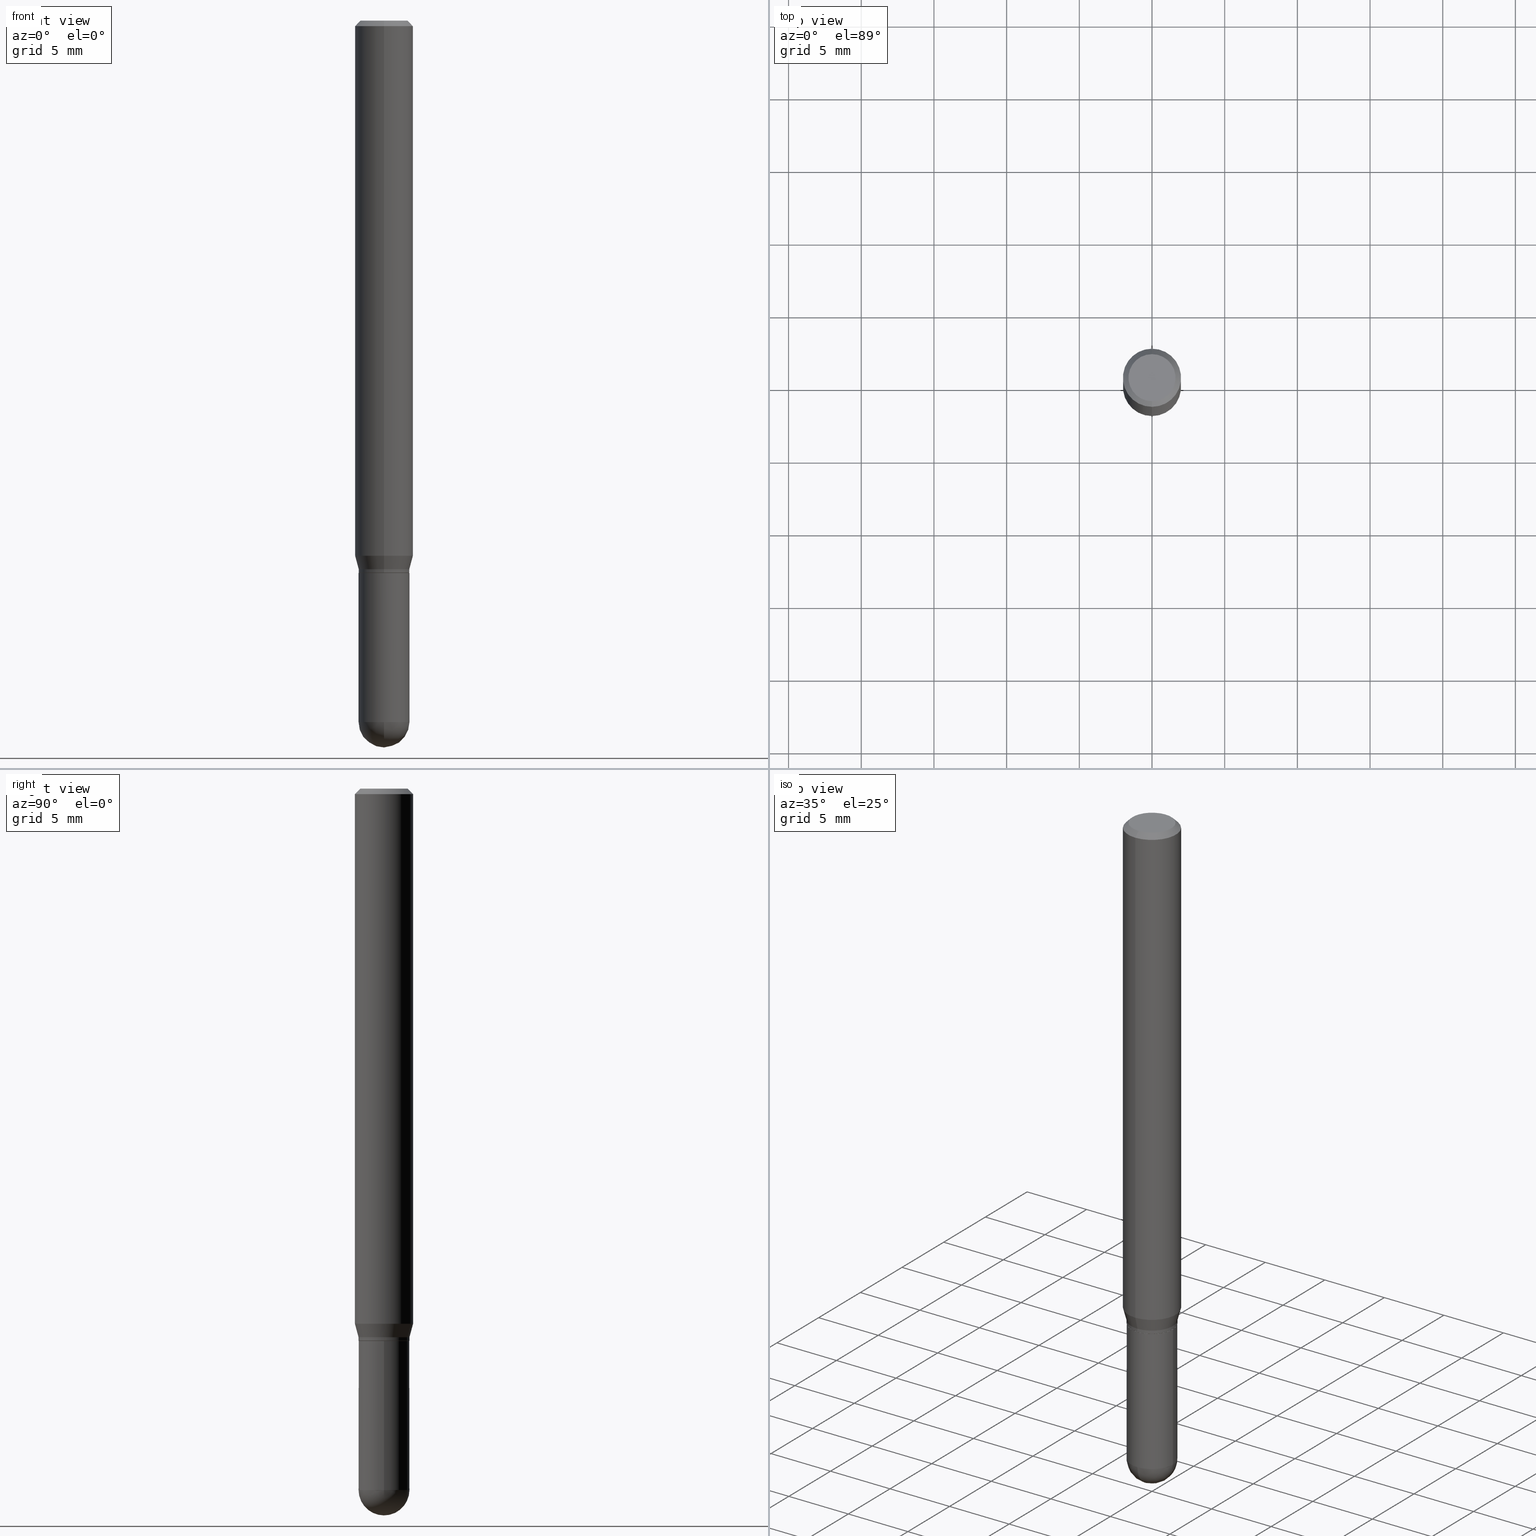
[diagram: canonical four-view strip — front | top / right | iso, engineering-drawing reading convention]
A machine part, canonical four-view strip (front | top / right | iso — engineering-drawing reading convention). The complete STEP part file that produces these views, byte-faithful:
ISO-10303-21;
HEADER;
FILE_DESCRIPTION (( 'STEP AP203' ),
    '1' );
FILE_NAME ('48697.STEP',
    '2024-03-08T13:13:53',
    ( '' ),
    ( '' ),
    'SwSTEP 2.0',
    'SolidWorks 2023',
    '' );
FILE_SCHEMA (( 'CONFIG_CONTROL_DESIGN' ));
ENDSEC;

DATA;
#1 = ORIENTED_EDGE ( 'NONE', *, *, #231, .F. ) ;
#2 = ORIENTED_EDGE ( 'NONE', *, *, #409, .F. ) ;
#3 = ORIENTED_EDGE ( 'NONE', *, *, #128, .F. ) ;
#4 = DIRECTION ( 'NONE',  ( 5.024295867788190974E-15, 0.7071067811865681119, 0.7071067811865270336 ) ) ;
#5 = EDGE_CURVE ( 'NONE', #339, #266, #205, .T. ) ;
#6 = ORIENTED_EDGE ( 'NONE', *, *, #172, .T. ) ;
#7 = AXIS2_PLACEMENT_3D ( 'NONE', #75, #180, #108 ) ;
#8 = APPLICATION_CONTEXT ( 'configuration controlled 3d designs of mechanical parts and assemblies' ) ;
#9 = ORIENTED_EDGE ( 'NONE', *, *, #433, .F. ) ;
#10 = LINE ( 'NONE', #372, #207 ) ;
#11 = DIRECTION ( 'NONE',  ( -6.982962677686265922E-15, -1.000000000000000000, 3.491123500755268426E-15 ) ) ;
#12 = ADVANCED_FACE ( 'NONE', ( #326 ), #441, .T. ) ;
#13 = CARTESIAN_POINT ( 'NONE',  ( 4.860112312599455225E-16, 0.06839999999999483993, -1.496100000000000207 ) ) ;
#14 = VECTOR ( 'NONE', #312, 39.37007874015748143 ) ;
#15 = AXIS2_PLACEMENT_3D ( 'NONE', #104, #501, #149 ) ;
#16 = DATE_AND_TIME ( #97, #321 ) ;
#17 = DIRECTION ( 'NONE',  ( 1.000000000000000000, -6.982962677686273021E-15, 0.000000000000000000 ) ) ;
#18 = DIRECTION ( 'NONE',  ( 2.445718683186366455E-29, -3.491123500755268426E-15, -1.000000000000000000 ) ) ;
#19 = FACE_OUTER_BOUND ( 'NONE', #469, .T. ) ;
#20 = VECTOR ( 'NONE', #486, 39.37007874015748143 ) ;
#21 = AXIS2_PLACEMENT_3D ( 'NONE', #254, #387, #103 ) ;
#22 = PERSON_AND_ORGANIZATION_ROLE ( 'design_supplier' ) ;
#23 = CARTESIAN_POINT ( 'NONE',  ( -4.776346471537044438E-16, -0.06840000000000528990, -1.496099999999999541 ) ) ;
#24 = PERSON_AND_ORGANIZATION_ROLE ( 'creator' ) ;
#25 = CARTESIAN_POINT ( 'NONE',  ( 3.668578024779561944E-31, -5.236685251132917725E-17, -0.01500000000000004628 ) ) ;
#26 = ADVANCED_FACE ( 'NONE', ( #107 ), #305, .T. ) ;
#27 = CIRCLE ( 'NONE', #269, 0.06889999999999972535 ) ;
#28 = CARTESIAN_POINT ( 'NONE',  ( 4.645412544229285965E-29, -6.632417951266439838E-15, -1.899600000000000177 ) ) ;
#29 = DIRECTION ( 'NONE',  ( -1.000000000000000000, 6.982962677686265922E-15, -4.883557194083112901E-29 ) ) ;
#30 = VERTEX_POINT ( 'NONE', #32 ) ;
#31 = EDGE_CURVE ( 'NONE', #379, #365, #193, .T. ) ;
#32 = CARTESIAN_POINT ( 'NONE',  ( 0.06890000000000008618, -6.409137719647418882E-15, -1.899600000000000177 ) ) ;
#33 = LINE ( 'NONE', #502, #459 ) ;
#34 = DIRECTION ( 'NONE',  ( -2.445718683186366736E-29, 3.491123500755268031E-15, 1.000000000000000000 ) ) ;
#35 = ORIENTED_EDGE ( 'NONE', *, *, #189, .F. ) ;
#36 = CARTESIAN_POINT ( 'NONE',  ( 3.659039721915122742E-29, -5.223069869479955983E-15, -1.496099999999999985 ) ) ;
#37 = VERTEX_POINT ( 'NONE', #353 ) ;
#38 = ADVANCED_FACE ( 'NONE', ( #468 ), #93, .T. ) ;
#39 = DIRECTION ( 'NONE',  ( -2.445718683186366736E-29, 3.491123500755268031E-15, 1.000000000000000000 ) ) ;
#40 = VECTOR ( 'NONE', #4, 39.37007874015748143 ) ;
#41 = ORIENTED_EDGE ( 'NONE', *, *, #445, .T. ) ;
#42 = ORIENTED_EDGE ( 'NONE', *, *, #322, .F. ) ;
#43 = DIRECTION ( 'NONE',  ( -2.445468806185136597E-29, 3.491481338843145583E-15, 1.000000000000000000 ) ) ;
#44 = ORIENTED_EDGE ( 'NONE', *, *, #173, .T. ) ;
#45 = CIRCLE ( 'NONE', #257, 0.06889999999999996128 ) ;
#46 = AXIS2_PLACEMENT_3D ( 'NONE', #444, #43, #196 ) ;
#47 = DIRECTION ( 'NONE',  ( -1.000000000000000000, 7.105427357601001070E-15, -4.926315508542082329E-29 ) ) ;
#48 = CC_DESIGN_DATE_AND_TIME_ASSIGNMENT ( #208, #143, ( #371 ) ) ;
#49 = FACE_OUTER_BOUND ( 'NONE', #51, .T. ) ;
#50 = EDGE_CURVE ( 'NONE', #365, #66, #235, .T. ) ;
#51 = EDGE_LOOP ( 'NONE', ( #115, #368, #2, #1 ) ) ;
#52 = PRODUCT_DEFINITION ( 'UNKNOWN', '', #82, #95 ) ;
#53 = AXIS2_PLACEMENT_3D ( 'NONE', #272, #310, #276 ) ;
#54 = CALENDAR_DATE ( 2024, 8, 3 ) ;
#55 = LINE ( 'NONE', #148, #14 ) ;
#56 = PERSON_AND_ORGANIZATION ( #342, #336 ) ;
#57 = DIRECTION ( 'NONE',  ( -6.982962677686266711E-15, -1.000000000000000000, 3.993929815298627073E-15 ) ) ;
#58 = DIRECTION ( 'NONE',  ( -2.445718683186366736E-29, 3.491123500755268031E-15, 1.000000000000000000 ) ) ;
#59 = AXIS2_PLACEMENT_3D ( 'NONE', #28, #354, #114 ) ;
#60 = AXIS2_PLACEMENT_3D ( 'NONE', #182, #18, #340 ) ;
#61 = ADVANCED_FACE ( 'NONE', ( #190 ), #134, .T. ) ;
#62 = CARTESIAN_POINT ( 'NONE',  ( 3.657816862573530119E-29, -5.221324307729578859E-15, -1.495600000000000041 ) ) ;
#63 = CARTESIAN_POINT ( 'NONE',  ( -4.811261284925827524E-16, -0.06889999999999986413, 2.405384092020375136E-16 ) ) ;
#64 = CARTESIAN_POINT ( 'NONE',  ( -4.811261284925454787E-16, -0.06890000000000491565, -1.486099999999999755 ) ) ;
#65 = DIRECTION ( 'NONE',  ( -2.445718683186366736E-29, 3.491123500755268031E-15, 1.000000000000000000 ) ) ;
#66 = VERTEX_POINT ( 'NONE', #77 ) ;
#67 = CLOSED_SHELL ( 'NONE', ( #421, #61, #38, #370, #192, #163, #309, #26, #488, #349, #411, #12 ) ) ;
#68 = AXIS2_PLACEMENT_3D ( 'NONE', #474, #284, #74 ) ;
#69 = AXIS2_PLACEMENT_3D ( 'NONE', #410, #70, #150 ) ;
#70 = DIRECTION ( 'NONE',  ( 2.445718683186366736E-29, -3.491123500755268031E-15, -1.000000000000000000 ) ) ;
#71 = LOCAL_TIME ( 8, 13, 53.00000000000000000, #291 ) ;
#72 = VERTEX_POINT ( 'NONE', #383 ) ;
#73 = DIRECTION ( 'NONE',  ( -7.105427357601001859E-15, -1.000000000000000000, 0.000000000000000000 ) ) ;
#74 = DIRECTION ( 'NONE',  ( 6.982962677686264344E-15, 1.000000000000000000, -3.496114991891765576E-15 ) ) ;
#75 = CARTESIAN_POINT ( 'NONE',  ( 3.659039721915122742E-29, -5.223069869479955983E-15, -1.496099999999999985 ) ) ;
#76 = ORIENTED_EDGE ( 'NONE', *, *, #299, .F. ) ;
#77 = CARTESIAN_POINT ( 'NONE',  ( 5.245581746749287830E-16, 0.06889999999999453506, -1.486100000000000199 ) ) ;
#78 = ORIENTED_EDGE ( 'NONE', *, *, #86, .T. ) ;
#79 = DIRECTION ( 'NONE',  ( -6.982962677686265922E-15, -1.000000000000000000, 3.491123500755268426E-15 ) ) ;
#80 = AXIS2_PLACEMENT_3D ( 'NONE', #381, #470, #281 ) ;
#81 = EDGE_CURVE ( 'NONE', #439, #126, #301, .T. ) ;
#82 = PRODUCT_DEFINITION_FORMATION_WITH_SPECIFIED_SOURCE ( 'ANY', '', #374, .NOT_KNOWN. ) ;
#83 = EDGE_CURVE ( 'NONE', #379, #283, #338, .T. ) ;
#84 = ORIENTED_EDGE ( 'NONE', *, *, #31, .F. ) ;
#85 = CARTESIAN_POINT ( 'NONE',  ( -5.499083108677932471E-16, -0.07874999999999997280, 2.749259756844772993E-16 ) ) ;
#86 = EDGE_CURVE ( 'NONE', #229, #327, #317, .T. ) ;
#87 = VECTOR ( 'NONE', #377, 39.37007874015748143 ) ;
#88 = ORIENTED_EDGE ( 'NONE', *, *, #204, .T. ) ;
#89 = CARTESIAN_POINT ( 'NONE',  ( 4.895639449387433642E-16, 0.06889999999999453506, -1.486100000000000199 ) ) ;
#90 = ORIENTED_EDGE ( 'NONE', *, *, #86, .F. ) ;
#91 = DIRECTION ( 'NONE',  ( 1.839019923739594004E-15, 0.2588190451025240701, 0.9659258262890673130 ) ) ;
#92 = CARTESIAN_POINT ( 'NONE',  ( -0.06890000000000008618, -5.438447646216124813E-15, -1.899600000000000177 ) ) ;
#93 = CONICAL_SURFACE ( 'NONE', #68, 0.07875000000000000056, 0.7853981633974483900 ) ;
#94 = CC_DESIGN_APPROVAL ( #415, ( #82 ) ) ;
#95 = DESIGN_CONTEXT ( 'detailed design', #8, 'design' ) ;
#96 = CARTESIAN_POINT ( 'NONE',  ( 4.645412544229285965E-29, -6.632417951266439838E-15, -1.899600000000000177 ) ) ;
#97 = CALENDAR_DATE ( 2024, 8, 3 ) ;
#98 = CARTESIAN_POINT ( 'NONE',  ( 3.634582535083260198E-29, -5.188158634472404036E-15, -1.486099999999999977 ) ) ;
#99 = CARTESIAN_POINT ( 'NONE',  ( 4.811261284926208150E-16, 0.06889999999999484037, -1.496100000000000207 ) ) ;
#100 = DIRECTION ( 'NONE',  ( -6.982962677686266711E-15, -1.000000000000000000, 3.993929815298627073E-15 ) ) ;
#101 = PERSON_AND_ORGANIZATION ( #342, #336 ) ;
#102 = CARTESIAN_POINT ( 'NONE',  ( 3.657816862573530119E-29, -5.221324307729578859E-15, -1.495600000000000041 ) ) ;
#103 = DIRECTION ( 'NONE',  ( 1.000000000000000000, -6.982962677686273021E-15, 0.000000000000000000 ) ) ;
#104 = CARTESIAN_POINT ( 'NONE',  ( 4.679918503997674770E-29, -6.583003452920844326E-15, -1.899600000000000177 ) ) ;
#105 = LOCAL_TIME ( 8, 13, 53.00000000000000000, #213 ) ;
#106 =( LENGTH_UNIT ( ) NAMED_UNIT ( * ) SI_UNIT ( $, .METRE. ) );
#107 = FACE_OUTER_BOUND ( 'NONE', #247, .T. ) ;
#108 = DIRECTION ( 'NONE',  ( -6.982962677686266711E-15, -1.000000000000000000, 3.993929815298627073E-15 ) ) ;
#109 = EDGE_LOOP ( 'NONE', ( #195, #78, #188, #35, #331 ) ) ;
#110 = AXIS2_PLACEMENT_3D ( 'NONE', #62, #316, #274 ) ;
#111 = DIRECTION ( 'NONE',  ( -2.445718683186366736E-29, 3.491123500755268031E-15, 1.000000000000000000 ) ) ;
#112 = ORIENTED_EDGE ( 'NONE', *, *, #189, .T. ) ;
#113 = DIRECTION ( 'NONE',  ( -6.982962677686266711E-15, -1.000000000000000000, 3.993929815298627073E-15 ) ) ;
#114 = DIRECTION ( 'NONE',  ( 1.000000000000000000, -6.982962677686273021E-15, 0.000000000000000000 ) ) ;
#115 = ORIENTED_EDGE ( 'NONE', *, *, #173, .F. ) ;
#116 = CARTESIAN_POINT ( 'NONE',  ( 4.975360907851465623E-16, 0.06375000000000000111, -2.694146663143613090E-16 ) ) ;
#117 = EDGE_LOOP ( 'NONE', ( #476, #41, #162, #167 ) ) ;
#118 = CIRCLE ( 'NONE', #319, 0.07875000000000000056 ) ;
#119 = DIRECTION ( 'NONE',  ( -6.982962677686265922E-15, -1.000000000000000000, 3.469013325287954477E-15 ) ) ;
#120 = EDGE_CURVE ( 'NONE', #266, #72, #33, .T. ) ;
#121 = DATE_AND_TIME ( #124, #71 ) ;
#122 = VERTEX_POINT ( 'NONE', #395 ) ;
#123 = FACE_OUTER_BOUND ( 'NONE', #440, .T. ) ;
#124 = CALENDAR_DATE ( 2024, 8, 3 ) ;
#125 = ADVANCED_BREP_SHAPE_REPRESENTATION ( '48697', ( #402, #217, #362 ), #184 ) ;
#126 = VERTEX_POINT ( 'NONE', #23 ) ;
#127 = ORIENTED_EDGE ( 'NONE', *, *, #222, .F. ) ;
#128 = EDGE_CURVE ( 'NONE', #72, #328, #361, .T. ) ;
#129 = AXIS2_PLACEMENT_3D ( 'NONE', #335, #47, #73 ) ;
#130 = CARTESIAN_POINT ( 'NONE',  ( -4.811261284925468592E-16, -0.06890000000000517932, -1.495599999999999818 ) ) ;
#131 = APPROVAL_PERSON_ORGANIZATION ( #56, #416, #384 ) ;
#132 = CARTESIAN_POINT ( 'NONE',  ( 3.634582535083260198E-29, -5.188158634472404036E-15, -1.486099999999999977 ) ) ;
#133 = PERSON_AND_ORGANIZATION ( #342, #336 ) ;
#134 = CONICAL_SURFACE ( 'NONE', #398, 0.06840000000000005798, 0.7853981633974739252 ) ;
#135 = AXIS2_PLACEMENT_3D ( 'NONE', #241, #329, #119 ) ;
#136 = CALENDAR_DATE ( 2024, 8, 3 ) ;
#137 = LOCAL_TIME ( 8, 13, 53.00000000000000000, #491 ) ;
#138 = PLANE ( 'NONE',  #289 ) ;
#139 = DIRECTION ( 'NONE',  ( -2.445468806185136597E-29, 3.491481338843145583E-15, 1.000000000000000000 ) ) ;
#140 = PERSON_AND_ORGANIZATION ( #342, #336 ) ;
#141 =( NAMED_UNIT ( * ) SI_UNIT ( $, .STERADIAN. ) SOLID_ANGLE_UNIT ( ) );
#142 = DIRECTION ( 'NONE',  ( 1.000000000000000000, -6.982962677686265922E-15, 4.876176775795935232E-29 ) ) ;
#143 = DATE_TIME_ROLE ( 'classification_date' ) ;
#144 = DIRECTION ( 'NONE',  ( 6.982962677686265922E-15, 1.000000000000000000, 0.000000000000000000 ) ) ;
#145 = AXIS2_PLACEMENT_3D ( 'NONE', #25, #356, #437 ) ;
#146 = CIRCLE ( 'NONE', #344, 0.06889999999999998903 ) ;
#147 = ORIENTED_EDGE ( 'NONE', *, *, #222, .T. ) ;
#148 = CARTESIAN_POINT ( 'NONE',  ( 0.06890000000000007230, -4.811261284925842315E-16, 3.359685798523402771E-30 ) ) ;
#149 = DIRECTION ( 'NONE',  ( 6.982962677686265922E-15, 1.000000000000000000, -3.964946289788482474E-15 ) ) ;
#150 = DIRECTION ( 'NONE',  ( 6.982962677686264344E-15, 1.000000000000000000, -3.496114991891765576E-15 ) ) ;
#151 = CARTESIAN_POINT ( 'NONE',  ( 4.679918503997674770E-29, -6.583003452920844326E-15, -1.899600000000000177 ) ) ;
#152 = LINE ( 'NONE', #64, #422 ) ;
#153 = ORIENTED_EDGE ( 'NONE', *, *, #324, .F. ) ;
#154 = ORIENTED_EDGE ( 'NONE', *, *, #120, .F. ) ;
#155 = DIRECTION ( 'NONE',  ( -2.445718683186367016E-29, 3.491123500755268426E-15, 1.000000000000000000 ) ) ;
#156 = ORIENTED_EDGE ( 'NONE', *, *, #265, .F. ) ;
#157 = CYLINDRICAL_SURFACE ( 'NONE', #183, 0.07874999999999997280 ) ;
#158 = AXIS2_PLACEMENT_3D ( 'NONE', #347, #454, #17 ) ;
#159 = DIRECTION ( 'NONE',  ( -2.445718683186366736E-29, 3.491123500755268031E-15, 1.000000000000000000 ) ) ;
#160 = DIRECTION ( 'NONE',  ( -6.982962677686264344E-15, -1.000000000000000000, 3.491123500755268031E-15 ) ) ;
#161 = EDGE_LOOP ( 'NONE', ( #320, #44, #186, #76 ) ) ;
#162 = ORIENTED_EDGE ( 'NONE', *, *, #250, .T. ) ;
#163 = ADVANCED_FACE ( 'NONE', ( #503 ), #435, .T. ) ;
#164 = ORIENTED_EDGE ( 'NONE', *, *, #128, .T. ) ;
#165 = DIRECTION ( 'NONE',  ( -6.982962677686265922E-15, -1.000000000000000000, 3.491123500755268426E-15 ) ) ;
#166 = VECTOR ( 'NONE', #248, 39.37007874015748143 ) ;
#167 = ORIENTED_EDGE ( 'NONE', *, *, #204, .F. ) ;
#168 = CLOSED_SHELL ( 'NONE', ( #275, #394, #494, #420, #296 ) ) ;
#169 = AXIS2_PLACEMENT_3D ( 'NONE', #396, #39, #160 ) ;
#170 = DIRECTION ( 'NONE',  ( -2.445718683186367016E-29, 3.491123500755268426E-15, 1.000000000000000000 ) ) ;
#171 = CIRCLE ( 'NONE', #21, 0.06890000000000007230 ) ;
#172 = EDGE_CURVE ( 'NONE', #252, #237, #200, .T. ) ;
#173 = EDGE_CURVE ( 'NONE', #438, #325, #45, .T. ) ;
#174 = DATE_TIME_ROLE ( 'creation_date' ) ;
#175 = CC_DESIGN_PERSON_AND_ORGANIZATION_ASSIGNMENT ( #389, #489, ( #371 ) ) ;
#176 = DIRECTION ( 'NONE',  ( -2.445718683186366736E-29, 3.491123500755268031E-15, 1.000000000000000000 ) ) ;
#177 = CONICAL_SURFACE ( 'NONE', #80, 0.06889999999999972535, 0.2617993877991494078 ) ;
#178 =( NAMED_UNIT ( * ) PLANE_ANGLE_UNIT ( ) SI_UNIT ( $, .RADIAN. ) );
#179 = COORDINATED_UNIVERSAL_TIME_OFFSET ( 5, 0, .BEHIND. ) ;
#180 = DIRECTION ( 'NONE',  ( -2.445718683186366736E-29, 3.491123500755268031E-15, 1.000000000000000000 ) ) ;
#181 = DIRECTION ( 'NONE',  ( -6.982962677686266711E-15, -1.000000000000000000, 3.964946289788496674E-15 ) ) ;
#182 = CARTESIAN_POINT ( 'NONE',  ( 4.451638707024993845E-16, 0.06375000000000000111, -2.459868947437548511E-16 ) ) ;
#183 = AXIS2_PLACEMENT_3D ( 'NONE', #450, #215, #351 ) ;
#184 =( GEOMETRIC_REPRESENTATION_CONTEXT ( 3 ) GLOBAL_UNCERTAINTY_ASSIGNED_CONTEXT ( ( #219 ) ) GLOBAL_UNIT_ASSIGNED_CONTEXT ( ( #388, #178, #141 ) ) REPRESENTATION_CONTEXT ( 'NONE', 'WORKASPACE' ) );
#185 = CARTESIAN_POINT ( 'NONE',  ( -4.888104823412213911E-16, -0.06375000000000000111, 1.757035800319353295E-16 ) ) ;
#186 = ORIENTED_EDGE ( 'NONE', *, *, #285, .F. ) ;
#187 = EDGE_LOOP ( 'NONE', ( #6, #227, #3, #224 ) ) ;
#188 = ORIENTED_EDGE ( 'NONE', *, *, #277, .F. ) ;
#189 = EDGE_CURVE ( 'NONE', #30, #122, #55, .T. ) ;
#190 = FACE_OUTER_BOUND ( 'NONE', #311, .T. ) ;
#191 = APPLICATION_CONTEXT ( 'configuration controlled 3d designs of mechanical parts and assemblies' ) ;
#192 = ADVANCED_FACE ( 'NONE', ( #230 ), #177, .T. ) ;
#193 = CIRCLE ( 'NONE', #110, 0.06889999999999998903 ) ;
#194 = CONICAL_SURFACE ( 'NONE', #280, 0.06840000000000005798, 0.7853981633974739252 ) ;
#195 = ORIENTED_EDGE ( 'NONE', *, *, #231, .T. ) ;
#196 = DIRECTION ( 'NONE',  ( 1.000000000000000000, -6.982962677686273021E-15, 0.000000000000000000 ) ) ;
#197 = EDGE_LOOP ( 'NONE', ( #404, #449 ) ) ;
#198 = EDGE_LOOP ( 'NONE', ( #232, #507 ) ) ;
#199 = ORIENTED_EDGE ( 'NONE', *, *, #50, .F. ) ;
#200 = CIRCLE ( 'NONE', #278, 0.07874999999999997280 ) ;
#201 = DIRECTION ( 'NONE',  ( 0.000000000000000000, 0.000000000000000000, 1.000000000000000000 ) ) ;
#202 = FACE_OUTER_BOUND ( 'NONE', #187, .T. ) ;
#203 = ORIENTED_EDGE ( 'NONE', *, *, #81, .F. ) ;
#204 = EDGE_CURVE ( 'NONE', #328, #72, #118, .T. ) ;
#205 = CIRCLE ( 'NONE', #499, 0.06375000000000000111 ) ;
#206 = AXIS2_PLACEMENT_3D ( 'NONE', #493, #139, #142 ) ;
#207 = VECTOR ( 'NONE', #170, 39.37007874015748143 ) ;
#208 = DATE_AND_TIME ( #256, #105 ) ;
#209 = DATE_AND_TIME ( #54, #418 ) ;
#210 = CARTESIAN_POINT ( 'NONE',  ( 3.668578024779561944E-31, -5.236685251132917725E-17, -0.01500000000000004628 ) ) ;
#211 = APPROVAL_STATUS ( 'not_yet_approved' ) ;
#212 = CC_DESIGN_PERSON_AND_ORGANIZATION_ASSIGNMENT ( #101, #24, ( #82 ) ) ;
#213 = COORDINATED_UNIVERSAL_TIME_OFFSET ( 5, 0, .BEHIND. ) ;
#214 = APPROVAL_ROLE ( '' ) ;
#215 = DIRECTION ( 'NONE',  ( -2.445718683186366736E-29, 3.491123500755268031E-15, 1.000000000000000000 ) ) ;
#216 = SPHERICAL_SURFACE ( 'NONE', #500, 0.06889999999999996128 ) ;
#217 = MANIFOLD_SOLID_BREP ( 'Body-Move/Copy2[2]', #67 ) ;
#218 = LENGTH_MEASURE_WITH_UNIT ( LENGTH_MEASURE( 0.02539999999999999897 ), #106 );
#219 = UNCERTAINTY_MEASURE_WITH_UNIT (LENGTH_MEASURE( 1.000000000000000082E-05 ), #388, 'distance_accuracy_value', 'NONE');
#220 = EDGE_LOOP ( 'NONE', ( #156, #337, #164, #406 ) ) ;
#221 = CIRCLE ( 'NONE', #508, 0.06840000000000005798 ) ;
#222 = EDGE_CURVE ( 'NONE', #283, #66, #27, .T. ) ;
#223 = PERSON_AND_ORGANIZATION_ROLE ( 'design_owner' ) ;
#224 = ORIENTED_EDGE ( 'NONE', *, *, #250, .F. ) ;
#225 = DIRECTION ( 'NONE',  ( 1.000000000000000000, -6.982962677686273021E-15, 0.000000000000000000 ) ) ;
#226 = CARTESIAN_POINT ( 'NONE',  ( -0.06890000000000007230, 4.895639449387095418E-16, -3.389146277185633520E-30 ) ) ;
#227 = ORIENTED_EDGE ( 'NONE', *, *, #375, .T. ) ;
#228 = LINE ( 'NONE', #13, #40 ) ;
#229 = VERTEX_POINT ( 'NONE', #92 ) ;
#230 = FACE_OUTER_BOUND ( 'NONE', #467, .T. ) ;
#231 = EDGE_CURVE ( 'NONE', #325, #229, #343, .T. ) ;
#232 = ORIENTED_EDGE ( 'NONE', *, *, #277, .T. ) ;
#233 = VECTOR ( 'NONE', #155, 39.37007874015748143 ) ;
#234 = CC_DESIGN_APPROVAL ( #505, ( #371 ) ) ;
#235 = LINE ( 'NONE', #399, #480 ) ;
#236 = DIRECTION ( 'NONE',  ( -2.445718683186366736E-29, 3.491123500755268031E-15, 1.000000000000000000 ) ) ;
#237 = VERTEX_POINT ( 'NONE', #367 ) ;
#238 = DIRECTION ( 'NONE',  ( -2.445718683186367016E-29, 3.491123500755268426E-15, 1.000000000000000000 ) ) ;
#239 = EDGE_CURVE ( 'NONE', #339, #328, #376, .T. ) ;
#240 = PLANE ( 'NONE',  #258 ) ;
#241 = CARTESIAN_POINT ( 'NONE',  ( 3.544676203174537983E-29, -5.059822489211284830E-15, -1.449339299545445714 ) ) ;
#242 = ORIENTED_EDGE ( 'NONE', *, *, #83, .T. ) ;
#243 = AXIS2_PLACEMENT_3D ( 'NONE', #132, #259, #181 ) ;
#244 = CC_DESIGN_APPROVAL ( #416, ( #52 ) ) ;
#245 = CARTESIAN_POINT ( 'NONE',  ( 4.851357352610053575E-29, -6.819347608944073688E-15, -1.968500000000000139 ) ) ;
#246 = EDGE_LOOP ( 'NONE', ( #314, #318, #127, #443 ) ) ;
#247 = EDGE_LOOP ( 'NONE', ( #154, #498, #307, #88 ) ) ;
#248 = DIRECTION ( 'NONE',  ( -2.445718683186367016E-29, 3.491123500755268426E-15, 1.000000000000000000 ) ) ;
#249 = CARTESIAN_POINT ( 'NONE',  ( 0.000000000000000000, 0.000000000000000000, 0.000000000000000000 ) ) ;
#250 = EDGE_CURVE ( 'NONE', #252, #72, #292, .T. ) ;
#251 = AXIS2_PLACEMENT_3D ( 'NONE', #426, #484, #11 ) ;
#252 = VERTEX_POINT ( 'NONE', #417 ) ;
#253 = EDGE_CURVE ( 'NONE', #438, #37, #473, .T. ) ;
#254 = CARTESIAN_POINT ( 'NONE',  ( 4.645412544229285965E-29, -6.632417951266439838E-15, -1.899600000000000177 ) ) ;
#255 = ORIENTED_EDGE ( 'NONE', *, *, #324, .T. ) ;
#256 = CALENDAR_DATE ( 2024, 8, 3 ) ;
#257 = AXIS2_PLACEMENT_3D ( 'NONE', #151, #431, #144 ) ;
#258 = AXIS2_PLACEMENT_3D ( 'NONE', #414, #369, #485 ) ;
#259 = DIRECTION ( 'NONE',  ( -2.445718683186366736E-29, 3.491123500755268031E-15, 1.000000000000000000 ) ) ;
#260 = EDGE_CURVE ( 'NONE', #439, #365, #228, .T. ) ;
#261 = APPLICATION_PROTOCOL_DEFINITION ( 'international standard', 'config_control_design', 1994, #8 ) ;
#262 = DIRECTION ( 'NONE',  ( -2.445468806185136597E-29, 3.491481338843145583E-15, 1.000000000000000000 ) ) ;
#263 = PERSON_AND_ORGANIZATION ( #342, #336 ) ;
#264 = FACE_OUTER_BOUND ( 'NONE', #161, .T. ) ;
#265 = EDGE_CURVE ( 'NONE', #266, #339, #407, .T. ) ;
#266 = VERTEX_POINT ( 'NONE', #185 ) ;
#267 = APPROVAL_ROLE ( '' ) ;
#268 = FACE_OUTER_BOUND ( 'NONE', #511, .T. ) ;
#269 = AXIS2_PLACEMENT_3D ( 'NONE', #308, #397, #451 ) ;
#270 = CARTESIAN_POINT ( 'NONE',  ( 3.659039721915122742E-29, -5.223069869479955983E-15, -1.496099999999999985 ) ) ;
#271 = COORDINATED_UNIVERSAL_TIME_OFFSET ( 5, 0, .BEHIND. ) ;
#272 = CARTESIAN_POINT ( 'NONE',  ( 4.645412544229285965E-29, -6.632417951266439838E-15, -1.899600000000000177 ) ) ;
#273 = FACE_OUTER_BOUND ( 'NONE', #109, .T. ) ;
#274 = DIRECTION ( 'NONE',  ( -6.982962677686265922E-15, -1.000000000000000000, 3.964946289788481685E-15 ) ) ;
#275 = ADVANCED_FACE ( 'NONE', ( #273 ), #341, .T. ) ;
#276 = DIRECTION ( 'NONE',  ( 1.000000000000000000, -6.982962677686273021E-15, 0.000000000000000000 ) ) ;
#277 = EDGE_CURVE ( 'NONE', #122, #327, #390, .T. ) ;
#278 = AXIS2_PLACEMENT_3D ( 'NONE', #424, #111, #496 ) ;
#279 = ORIENTED_EDGE ( 'NONE', *, *, #260, .T. ) ;
#280 = AXIS2_PLACEMENT_3D ( 'NONE', #401, #34, #100 ) ;
#281 = DIRECTION ( 'NONE',  ( -6.982962677686266711E-15, -1.000000000000000000, 3.964946289788496674E-15 ) ) ;
#282 = ORIENTED_EDGE ( 'NONE', *, *, #260, .F. ) ;
#283 = VERTEX_POINT ( 'NONE', #495 ) ;
#284 = DIRECTION ( 'NONE',  ( 2.445718683186366736E-29, -3.491123500755268031E-15, -1.000000000000000000 ) ) ;
#285 = EDGE_CURVE ( 'NONE', #30, #325, #448, .T. ) ;
#286 = CARTESIAN_POINT ( 'NONE',  ( 4.877875880993454787E-16, 0.06839999999999483993, -1.496100000000000207 ) ) ;
#287 = PLANE ( 'NONE',  #60 ) ;
#288 = CIRCLE ( 'NONE', #53, 0.06890000000000007230 ) ;
#289 = AXIS2_PLACEMENT_3D ( 'NONE', #99, #462, #490 ) ;
#290 = EDGE_CURVE ( 'NONE', #126, #439, #221, .T. ) ;
#291 = COORDINATED_UNIVERSAL_TIME_OFFSET ( 5, 0, .BEHIND. ) ;
#292 = LINE ( 'NONE', #85, #166 ) ;
#293 = PRODUCT_RELATED_PRODUCT_CATEGORY ( 'detail', '', ( #374 ) ) ;
#294 = VECTOR ( 'NONE', #91, 39.37007874015748854 ) ;
#295 = LINE ( 'NONE', #89, #294 ) ;
#296 = ADVANCED_FACE ( 'NONE', ( #19 ), #345, .T. ) ;
#297 = PRODUCT_DEFINITION_SHAPE ( 'NONE', 'NONE',  #52 ) ;
#298 = CARTESIAN_POINT ( 'NONE',  ( 0.000000000000000000, 0.000000000000000000, 0.000000000000000000 ) ) ;
#299 = EDGE_CURVE ( 'NONE', #37, #30, #288, .T. ) ;
#300 = DIRECTION ( 'NONE',  ( -4.851104656540964275E-15, -0.7071067811865500152, -0.7071067811865450192 ) ) ;
#301 = CIRCLE ( 'NONE', #7, 0.06840000000000005798 ) ;
#302 = AXIS2_PLACEMENT_3D ( 'NONE', #475, #359, #79 ) ;
#303 = AXIS2_PLACEMENT_3D ( 'NONE', #98, #58, #405 ) ;
#304 = CARTESIAN_POINT ( 'NONE',  ( 4.679918503997674770E-29, -6.583003452920844326E-15, -1.899600000000000177 ) ) ;
#305 = CONICAL_SURFACE ( 'NONE', #69, 0.07875000000000000056, 0.7853981633974483900 ) ;
#306 = CIRCLE ( 'NONE', #135, 0.07874999999999997280 ) ;
#307 = ORIENTED_EDGE ( 'NONE', *, *, #239, .T. ) ;
#308 = CARTESIAN_POINT ( 'NONE',  ( 3.634582535083260198E-29, -5.188158634472404036E-15, -1.486099999999999977 ) ) ;
#309 = ADVANCED_FACE ( 'NONE', ( #315 ), #157, .T. ) ;
#310 = DIRECTION ( 'NONE',  ( -2.445468806185136597E-29, 3.491481338843145583E-15, 1.000000000000000000 ) ) ;
#311 = EDGE_LOOP ( 'NONE', ( #478, #279, #84, #9 ) ) ;
#312 = DIRECTION ( 'NONE',  ( -2.445468806185136877E-29, 3.491481338843145188E-15, 1.000000000000000000 ) ) ;
#313 = CARTESIAN_POINT ( 'NONE',  ( 5.595524044111143991E-16, 0.07874999999999994504, -0.01500000000000032210 ) ) ;
#314 = ORIENTED_EDGE ( 'NONE', *, *, #31, .T. ) ;
#315 = FACE_OUTER_BOUND ( 'NONE', #117, .T. ) ;
#316 = DIRECTION ( 'NONE',  ( -2.445718683186366736E-29, 3.491123500755268031E-15, 1.000000000000000000 ) ) ;
#317 = LINE ( 'NONE', #226, #20 ) ;
#318 = ORIENTED_EDGE ( 'NONE', *, *, #50, .T. ) ;
#319 = AXIS2_PLACEMENT_3D ( 'NONE', #210, #236, #460 ) ;
#320 = ORIENTED_EDGE ( 'NONE', *, *, #253, .F. ) ;
#321 = LOCAL_TIME ( 8, 13, 53.00000000000000000, #179 ) ;
#322 = EDGE_CURVE ( 'NONE', #283, #252, #152, .T. ) ;
#323 = DIRECTION ( 'NONE',  ( -4.937700262164674260E-15, -0.7071067811865632269, 0.7071067811865319186 ) ) ;
#324 = EDGE_CURVE ( 'NONE', #365, #379, #146, .T. ) ;
#325 = VERTEX_POINT ( 'NONE', #455 ) ;
#326 = FACE_OUTER_BOUND ( 'NONE', #358, .T. ) ;
#327 = VERTEX_POINT ( 'NONE', #348 ) ;
#328 = VERTEX_POINT ( 'NONE', #313 ) ;
#329 = DIRECTION ( 'NONE',  ( -2.445718683186366736E-29, 3.491123500755268031E-15, 1.000000000000000000 ) ) ;
#330 = AXIS2_PLACEMENT_3D ( 'NONE', #432, #65, #165 ) ;
#331 = ORIENTED_EDGE ( 'NONE', *, *, #285, .T. ) ;
#332 = CARTESIAN_POINT ( 'NONE',  ( 5.499083108677937401E-16, 0.07874999999999994504, -0.01500000000000032210 ) ) ;
#333 = ORIENTED_EDGE ( 'NONE', *, *, #433, .T. ) ;
#334 = EDGE_CURVE ( 'NONE', #66, #283, #423, .T. ) ;
#335 = CARTESIAN_POINT ( 'NONE',  ( 4.679918503997674770E-29, -6.583003452920844326E-15, -1.899600000000000177 ) ) ;
#336 = ORGANIZATION ( 'UNSPECIFIED', 'UNSPECIFIED', '' ) ;
#337 = ORIENTED_EDGE ( 'NONE', *, *, #120, .T. ) ;
#338 = LINE ( 'NONE', #63, #233 ) ;
#339 = VERTEX_POINT ( 'NONE', #116 ) ;
#340 = DIRECTION ( 'NONE',  ( 6.982962677686265922E-15, 1.000000000000000000, -3.491123500755268426E-15 ) ) ;
#341 = CYLINDRICAL_SURFACE ( 'NONE', #378, 0.06890000000000007230 ) ;
#342 = PERSON ( 'UNSPECIFIED', 'UNSPECIFIED', 'UNSPECIFIED', ('UNSPECIFIED'), ('UNSPECIFIED'), ('UNSPECIFIED') ) ;
#343 = CIRCLE ( 'NONE', #59, 0.06890000000000007230 ) ;
#344 = AXIS2_PLACEMENT_3D ( 'NONE', #102, #176, #355 ) ;
#345 = CYLINDRICAL_SURFACE ( 'NONE', #206, 0.06890000000000007230 ) ;
#346 = DIRECTION ( 'NONE',  ( 6.982962677686265922E-15, 1.000000000000000000, -3.964946289788482474E-15 ) ) ;
#347 = CARTESIAN_POINT ( 'NONE',  ( 3.658665880933582389E-29, -5.223605231043229660E-15, -1.496099999999999985 ) ) ;
#348 = CARTESIAN_POINT ( 'NONE',  ( -0.06890000000000007230, -5.438447646216124813E-15, -1.496099999999999985 ) ) ;
#349 = ADVANCED_FACE ( 'NONE', ( #123 ), #240, .F. ) ;
#350 = ORIENTED_EDGE ( 'NONE', *, *, #322, .T. ) ;
#351 = DIRECTION ( 'NONE',  ( -6.982962677686265922E-15, -1.000000000000000000, 3.491123500755268426E-15 ) ) ;
#352 = PERSON_AND_ORGANIZATION ( #342, #336 ) ;
#353 = CARTESIAN_POINT ( 'NONE',  ( -4.895639449386624073E-16, -0.06890000000000662261, -1.899599999999999955 ) ) ;
#354 = DIRECTION ( 'NONE',  ( -2.445468806185136597E-29, 3.491481338843145583E-15, 1.000000000000000000 ) ) ;
#355 = DIRECTION ( 'NONE',  ( -6.982962677686265922E-15, -1.000000000000000000, 3.964946289788481685E-15 ) ) ;
#356 = DIRECTION ( 'NONE',  ( -2.445718683186366736E-29, 3.491123500755268031E-15, 1.000000000000000000 ) ) ;
#357 = ORIENTED_EDGE ( 'NONE', *, *, #466, .F. ) ;
#358 = EDGE_LOOP ( 'NONE', ( #199, #255, #242, #412 ) ) ;
#359 = DIRECTION ( 'NONE',  ( -2.445718683186366736E-29, 3.491123500755268031E-15, 1.000000000000000000 ) ) ;
#360 = LINE ( 'NONE', #510, #492 ) ;
#361 = CIRCLE ( 'NONE', #145, 0.07875000000000000056 ) ;
#362 = AXIS2_PLACEMENT_3D ( 'NONE', #249, #201, #373 ) ;
#363 = CARTESIAN_POINT ( 'NONE',  ( 1.145954772713094785E-45, -1.635784878009410543E-31, -4.685554314121300824E-17 ) ) ;
#364 = FACE_OUTER_BOUND ( 'NONE', #197, .T. ) ;
#365 = VERTEX_POINT ( 'NONE', #419 ) ;
#366 = ORIENTED_EDGE ( 'NONE', *, *, #81, .T. ) ;
#367 = CARTESIAN_POINT ( 'NONE',  ( 5.595524044111142018E-16, 0.07874999999999494904, -1.449339299545445936 ) ) ;
#368 = ORIENTED_EDGE ( 'NONE', *, *, #253, .T. ) ;
#369 = DIRECTION ( 'NONE',  ( -2.445718683186366455E-29, 3.491123500755268426E-15, 1.000000000000000000 ) ) ;
#370 = ADVANCED_FACE ( 'NONE', ( #202 ), #447, .T. ) ;
#371 = SECURITY_CLASSIFICATION ( '', '', #380 ) ;
#372 = CARTESIAN_POINT ( 'NONE',  ( 5.595524044110786045E-16, 0.07874999999999997280, -2.749259756844772993E-16 ) ) ;
#373 = DIRECTION ( 'NONE',  ( 1.000000000000000000, 0.000000000000000000, 0.000000000000000000 ) ) ;
#374 = PRODUCT ( '48697', '48697', '', ( #456 ) ) ;
#375 = EDGE_CURVE ( 'NONE', #237, #328, #10, .T. ) ;
#376 = LINE ( 'NONE', #332, #87 ) ;
#377 = DIRECTION ( 'NONE',  ( 4.937700262164548042E-15, 0.7071067811865451302, -0.7071067811865499042 ) ) ;
#378 = AXIS2_PLACEMENT_3D ( 'NONE', #298, #487, #385 ) ;
#379 = VERTEX_POINT ( 'NONE', #130 ) ;
#380 = SECURITY_CLASSIFICATION_LEVEL ( 'unclassified' ) ;
#381 = CARTESIAN_POINT ( 'NONE',  ( 3.634582535083260198E-29, -5.188158634472404036E-15, -1.486099999999999977 ) ) ;
#382 = EDGE_CURVE ( 'NONE', #66, #237, #295, .T. ) ;
#383 = CARTESIAN_POINT ( 'NONE',  ( -5.499083108677930499E-16, -0.07875000000000004219, -0.01499999999999977220 ) ) ;
#384 = APPROVAL_ROLE ( '' ) ;
#385 = DIRECTION ( 'NONE',  ( 1.000000000000000000, -6.982962677686265922E-15, 4.876176775795935232E-29 ) ) ;
#386 = DIRECTION ( 'NONE',  ( -1.807323732225323828E-15, -0.2588190451025172978, 0.9659258262890690894 ) ) ;
#387 = DIRECTION ( 'NONE',  ( -2.445468806185136597E-29, 3.491481338843145583E-15, 1.000000000000000000 ) ) ;
#388 =( CONVERSION_BASED_UNIT ( 'INCH', #218 ) LENGTH_UNIT ( ) NAMED_UNIT ( #472 ) );
#389 = PERSON_AND_ORGANIZATION ( #342, #336 ) ;
#390 = CIRCLE ( 'NONE', #158, 0.06890000000000007230 ) ;
#391 = CC_DESIGN_PERSON_AND_ORGANIZATION_ASSIGNMENT ( #352, #223, ( #374 ) ) ;
#392 = PERSON_AND_ORGANIZATION ( #342, #336 ) ;
#393 = APPROVAL_DATE_TIME ( #16, #505 ) ;
#394 = ADVANCED_FACE ( 'NONE', ( #49 ), #216, .T. ) ;
#395 = CARTESIAN_POINT ( 'NONE',  ( 0.06890000000000007230, -5.704731359535814187E-15, -1.496099999999999985 ) ) ;
#396 = CARTESIAN_POINT ( 'NONE',  ( 1.145954772713094785E-45, -1.635784878009410543E-31, -4.685554314121300824E-17 ) ) ;
#397 = DIRECTION ( 'NONE',  ( -2.445718683186366736E-29, 3.491123500755268031E-15, 1.000000000000000000 ) ) ;
#398 = AXIS2_PLACEMENT_3D ( 'NONE', #36, #159, #113 ) ;
#399 = CARTESIAN_POINT ( 'NONE',  ( 4.895639449387079640E-16, 0.06889999999999986413, -2.405384092020375136E-16 ) ) ;
#400 = EDGE_LOOP ( 'NONE', ( #430, #413, #350, #403 ) ) ;
#401 = CARTESIAN_POINT ( 'NONE',  ( 3.659039721915122742E-29, -5.223069869479955983E-15, -1.496099999999999985 ) ) ;
#402 = MANIFOLD_SOLID_BREP ( 'Body-Move/Copy2[1]', #168 ) ;
#403 = ORIENTED_EDGE ( 'NONE', *, *, #445, .F. ) ;
#404 = ORIENTED_EDGE ( 'NONE', *, *, #5, .T. ) ;
#405 = DIRECTION ( 'NONE',  ( -6.982962677686266711E-15, -1.000000000000000000, 3.964946289788496674E-15 ) ) ;
#406 = ORIENTED_EDGE ( 'NONE', *, *, #239, .F. ) ;
#407 = CIRCLE ( 'NONE', #169, 0.06375000000000000111 ) ;
#408 = DATE_AND_TIME ( #136, #137 ) ;
#409 = EDGE_CURVE ( 'NONE', #229, #37, #171, .T. ) ;
#410 = CARTESIAN_POINT ( 'NONE',  ( 3.668578024779561944E-31, -5.236685251132917725E-17, -0.01500000000000004628 ) ) ;
#411 = ADVANCED_FACE ( 'NONE', ( #268 ), #194, .T. ) ;
#412 = ORIENTED_EDGE ( 'NONE', *, *, #334, .F. ) ;
#413 = ORIENTED_EDGE ( 'NONE', *, *, #334, .T. ) ;
#414 = CARTESIAN_POINT ( 'NONE',  ( 3.659039721915122742E-29, -5.223069869479955983E-15, -1.496099999999999985 ) ) ;
#415 = APPROVAL ( #425, 'UNSPECIFIED' ) ;
#416 = APPROVAL ( #211, 'UNSPECIFIED' ) ;
#417 = CARTESIAN_POINT ( 'NONE',  ( -5.499083108677578469E-16, -0.07875000000000501044, -1.449339299545445270 ) ) ;
#418 = LOCAL_TIME ( 8, 13, 53.00000000000000000, #271 ) ;
#419 = CARTESIAN_POINT ( 'NONE',  ( 4.895639449387457308E-16, 0.06889999999999479874, -1.495600000000000263 ) ) ;
#420 = ADVANCED_FACE ( 'NONE', ( #264 ), #457, .T. ) ;
#421 = ADVANCED_FACE ( 'NONE', ( #463 ), #465, .T. ) ;
#422 = VECTOR ( 'NONE', #386, 39.37007874015748854 ) ;
#423 = CIRCLE ( 'NONE', #303, 0.06889999999999972535 ) ;
#424 = CARTESIAN_POINT ( 'NONE',  ( 3.544676203174537983E-29, -5.059822489211284830E-15, -1.449339299545445714 ) ) ;
#425 = APPROVAL_STATUS ( 'not_yet_approved' ) ;
#426 = CARTESIAN_POINT ( 'NONE',  ( 0.000000000000000000, 0.000000000000000000, 0.000000000000000000 ) ) ;
#427 = DIRECTION ( 'NONE',  ( -2.445718683186366736E-29, 3.491123500755268031E-15, 1.000000000000000000 ) ) ;
#428 = SHAPE_DEFINITION_REPRESENTATION ( #297, #125 ) ;
#429 = FACE_OUTER_BOUND ( 'NONE', #198, .T. ) ;
#430 = ORIENTED_EDGE ( 'NONE', *, *, #382, .F. ) ;
#431 = DIRECTION ( 'NONE',  ( 1.000000000000000000, -6.982962677686265922E-15, 4.883557194083112340E-29 ) ) ;
#432 = CARTESIAN_POINT ( 'NONE',  ( 0.000000000000000000, 0.000000000000000000, 0.000000000000000000 ) ) ;
#433 = EDGE_CURVE ( 'NONE', #126, #379, #360, .T. ) ;
#434 = ORIENTED_EDGE ( 'NONE', *, *, #299, .T. ) ;
#435 = CONICAL_SURFACE ( 'NONE', #243, 0.06889999999999972535, 0.2617993877991494078 ) ;
#436 = DIRECTION ( 'NONE',  ( -6.982962677686264344E-15, -1.000000000000000000, 3.491123500755268031E-15 ) ) ;
#437 = DIRECTION ( 'NONE',  ( -6.982962677686264344E-15, -1.000000000000000000, 3.496114991891765576E-15 ) ) ;
#438 = VERTEX_POINT ( 'NONE', #245 ) ;
#439 = VERTEX_POINT ( 'NONE', #286 ) ;
#440 = EDGE_LOOP ( 'NONE', ( #512, #203 ) ) ;
#441 = CYLINDRICAL_SURFACE ( 'NONE', #302, 0.06889999999999986413 ) ;
#442 = AXIS2_PLACEMENT_3D ( 'NONE', #96, #262, #225 ) ;
#443 = ORIENTED_EDGE ( 'NONE', *, *, #83, .F. ) ;
#444 = CARTESIAN_POINT ( 'NONE',  ( 3.658665880933582389E-29, -5.223605231043229660E-15, -1.496099999999999985 ) ) ;
#445 = EDGE_CURVE ( 'NONE', #237, #252, #306, .T. ) ;
#446 = APPROVAL_DATE_TIME ( #121, #415 ) ;
#447 = CYLINDRICAL_SURFACE ( 'NONE', #251, 0.07874999999999997280 ) ;
#448 = CIRCLE ( 'NONE', #442, 0.06890000000000007230 ) ;
#449 = ORIENTED_EDGE ( 'NONE', *, *, #265, .T. ) ;
#450 = CARTESIAN_POINT ( 'NONE',  ( 0.000000000000000000, 0.000000000000000000, 0.000000000000000000 ) ) ;
#451 = DIRECTION ( 'NONE',  ( -6.982962677686266711E-15, -1.000000000000000000, 3.964946289788496674E-15 ) ) ;
#452 = APPROVAL_PERSON_ORGANIZATION ( #133, #415, #214 ) ;
#453 = CC_DESIGN_PERSON_AND_ORGANIZATION_ASSIGNMENT ( #392, #22, ( #82 ) ) ;
#454 = DIRECTION ( 'NONE',  ( -2.445468806185136597E-29, 3.491481338843145583E-15, 1.000000000000000000 ) ) ;
#455 = CARTESIAN_POINT ( 'NONE',  ( 4.811261284926304785E-16, 0.06889999999999341096, -1.899600000000000399 ) ) ;
#456 = MECHANICAL_CONTEXT ( 'NONE', #191, 'mechanical' ) ;
#457 = SPHERICAL_SURFACE ( 'NONE', #15, 0.06889999999999996128 ) ;
#458 = APPROVAL_STATUS ( 'not_yet_approved' ) ;
#459 = VECTOR ( 'NONE', #300, 39.37007874015748143 ) ;
#460 = DIRECTION ( 'NONE',  ( -6.982962677686264344E-15, -1.000000000000000000, 3.496114991891765576E-15 ) ) ;
#461 = CIRCLE ( 'NONE', #46, 0.06890000000000007230 ) ;
#462 = DIRECTION ( 'NONE',  ( 2.438088387897960049E-29, -3.491481338843145188E-15, -1.000000000000000000 ) ) ;
#463 = FACE_OUTER_BOUND ( 'NONE', #246, .T. ) ;
#464 = DIRECTION ( 'NONE',  ( -2.445718683186366736E-29, 3.491123500755268031E-15, 1.000000000000000000 ) ) ;
#465 = CYLINDRICAL_SURFACE ( 'NONE', #330, 0.06889999999999986413 ) ;
#466 = EDGE_CURVE ( 'NONE', #327, #122, #461, .T. ) ;
#467 = EDGE_LOOP ( 'NONE', ( #147, #482, #471, #42 ) ) ;
#468 = FACE_OUTER_BOUND ( 'NONE', #220, .T. ) ;
#469 = EDGE_LOOP ( 'NONE', ( #90, #506, #434, #112, #357 ) ) ;
#470 = DIRECTION ( 'NONE',  ( -2.445718683186366736E-29, 3.491123500755268031E-15, 1.000000000000000000 ) ) ;
#471 = ORIENTED_EDGE ( 'NONE', *, *, #172, .F. ) ;
#472 = DIMENSIONAL_EXPONENTS ( 1.000000000000000000, 0.000000000000000000, 0.000000000000000000, 0.000000000000000000, 0.000000000000000000, 0.000000000000000000, 0.000000000000000000 ) ;
#473 = CIRCLE ( 'NONE', #129, 0.06889999999999996128 ) ;
#474 = CARTESIAN_POINT ( 'NONE',  ( 3.668578024779561944E-31, -5.236685251132917725E-17, -0.01500000000000004628 ) ) ;
#475 = CARTESIAN_POINT ( 'NONE',  ( 0.000000000000000000, 0.000000000000000000, 0.000000000000000000 ) ) ;
#476 = ORIENTED_EDGE ( 'NONE', *, *, #375, .F. ) ;
#477 = APPROVAL_DATE_TIME ( #408, #416 ) ;
#478 = ORIENTED_EDGE ( 'NONE', *, *, #290, .T. ) ;
#479 = CC_DESIGN_PERSON_AND_ORGANIZATION_ASSIGNMENT ( #140, #497, ( #52 ) ) ;
#480 = VECTOR ( 'NONE', #238, 39.37007874015748143 ) ;
#481 = CC_DESIGN_SECURITY_CLASSIFICATION ( #371, ( #82 ) ) ;
#482 = ORIENTED_EDGE ( 'NONE', *, *, #382, .T. ) ;
#483 = APPLICATION_PROTOCOL_DEFINITION ( 'international standard', 'config_control_design', 1994, #191 ) ;
#484 = DIRECTION ( 'NONE',  ( -2.445718683186366736E-29, 3.491123500755268031E-15, 1.000000000000000000 ) ) ;
#485 = DIRECTION ( 'NONE',  ( -6.982962677686265922E-15, -1.000000000000000000, 3.491123500755268426E-15 ) ) ;
#486 = DIRECTION ( 'NONE',  ( -2.445468806185136877E-29, 3.491481338843145188E-15, 1.000000000000000000 ) ) ;
#487 = DIRECTION ( 'NONE',  ( -2.445468806185136597E-29, 3.491481338843145583E-15, 1.000000000000000000 ) ) ;
#488 = ADVANCED_FACE ( 'NONE', ( #364 ), #287, .F. ) ;
#489 = PERSON_AND_ORGANIZATION_ROLE ( 'classification_officer' ) ;
#490 = DIRECTION ( 'NONE',  ( -1.000000000000000000, 6.982962677686265922E-15, -4.876176775795935793E-29 ) ) ;
#491 = COORDINATED_UNIVERSAL_TIME_OFFSET ( 5, 0, .BEHIND. ) ;
#492 = VECTOR ( 'NONE', #323, 39.37007874015748143 ) ;
#493 = CARTESIAN_POINT ( 'NONE',  ( 0.000000000000000000, 0.000000000000000000, 0.000000000000000000 ) ) ;
#494 = ADVANCED_FACE ( 'NONE', ( #429 ), #138, .F. ) ;
#495 = CARTESIAN_POINT ( 'NONE',  ( -4.811261284925454787E-16, -0.06890000000000491565, -1.486099999999999755 ) ) ;
#496 = DIRECTION ( 'NONE',  ( -6.982962677686265922E-15, -1.000000000000000000, 3.469013325287954477E-15 ) ) ;
#497 = PERSON_AND_ORGANIZATION_ROLE ( 'creator' ) ;
#498 = ORIENTED_EDGE ( 'NONE', *, *, #5, .F. ) ;
#499 = AXIS2_PLACEMENT_3D ( 'NONE', #363, #464, #436 ) ;
#500 = AXIS2_PLACEMENT_3D ( 'NONE', #304, #29, #346 ) ;
#501 = DIRECTION ( 'NONE',  ( -1.000000000000000000, 6.982962677686265922E-15, -4.883557194083112901E-29 ) ) ;
#502 = CARTESIAN_POINT ( 'NONE',  ( -5.402642173245076924E-16, -0.07875000000000004219, -0.01499999999999977220 ) ) ;
#503 = FACE_OUTER_BOUND ( 'NONE', #400, .T. ) ;
#504 = CC_DESIGN_DATE_AND_TIME_ASSIGNMENT ( #209, #174, ( #52 ) ) ;
#505 = APPROVAL ( #458, 'UNSPECIFIED' ) ;
#506 = ORIENTED_EDGE ( 'NONE', *, *, #409, .T. ) ;
#507 = ORIENTED_EDGE ( 'NONE', *, *, #466, .T. ) ;
#508 = AXIS2_PLACEMENT_3D ( 'NONE', #270, #427, #57 ) ;
#509 = APPROVAL_PERSON_ORGANIZATION ( #263, #505, #267 ) ;
#510 = CARTESIAN_POINT ( 'NONE',  ( -4.776346471537044438E-16, -0.06840000000000528990, -1.496099999999999541 ) ) ;
#511 = EDGE_LOOP ( 'NONE', ( #282, #366, #333, #153 ) ) ;
#512 = ORIENTED_EDGE ( 'NONE', *, *, #290, .F. ) ;
ENDSEC;
END-ISO-10303-21;
